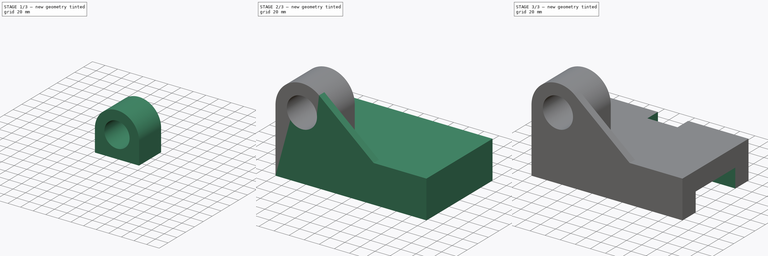
[diagram: build sequence overview — one tinted view per stage of 3, left to right]
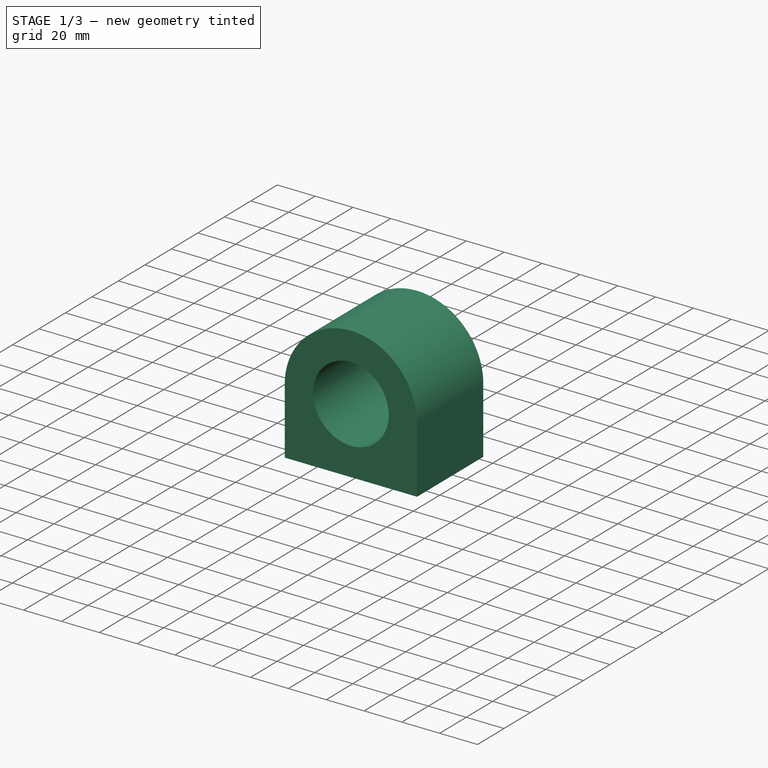
[diagram: stage 1 of 3 — iso view after this stage's code; geometry added in this stage tinted green]
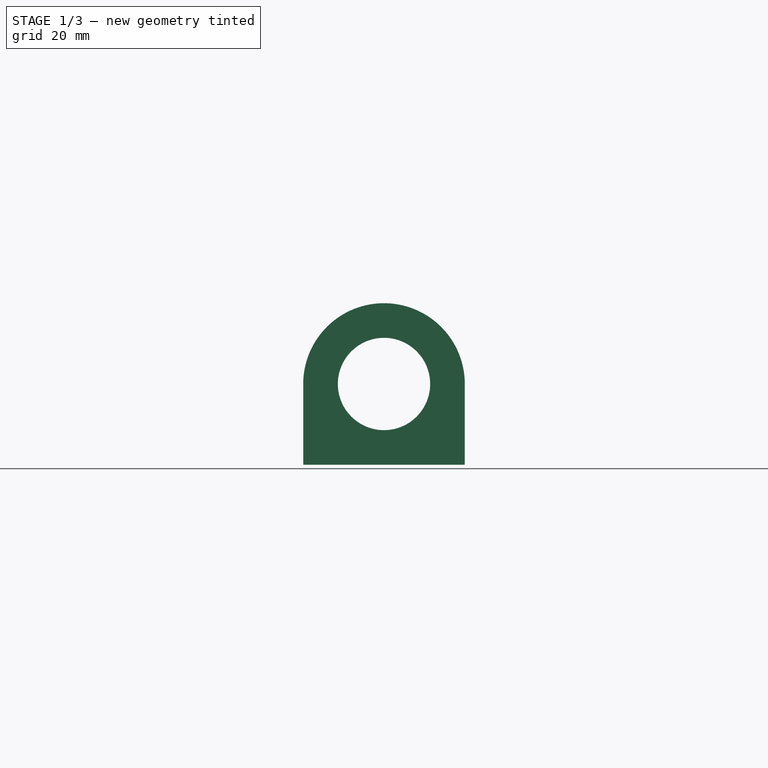
[diagram: stage 1 of 3 — front view after this stage's code; geometry added in this stage tinted green]
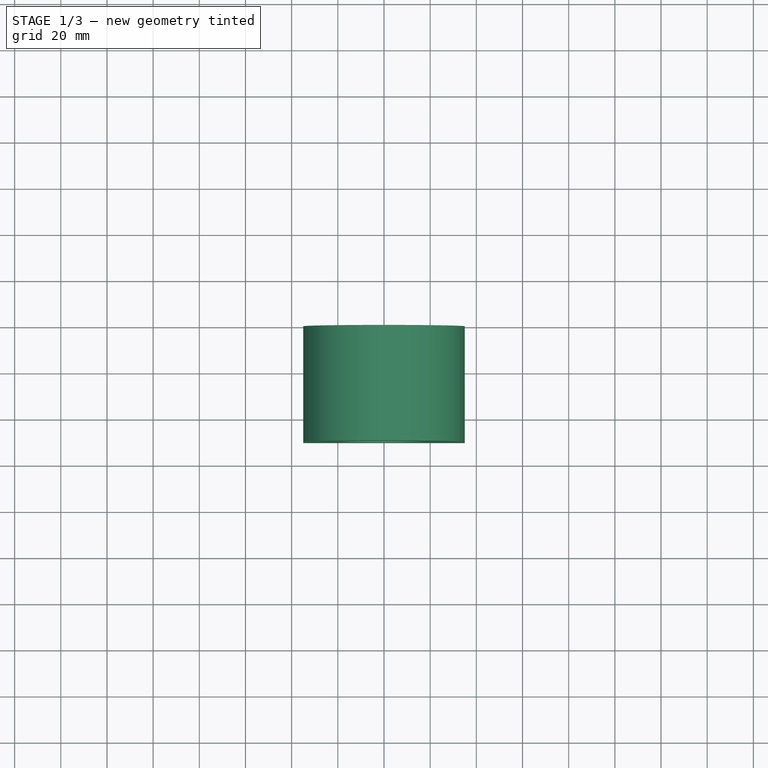
[diagram: stage 1 of 3 — top view after this stage's code; geometry added in this stage tinted green]
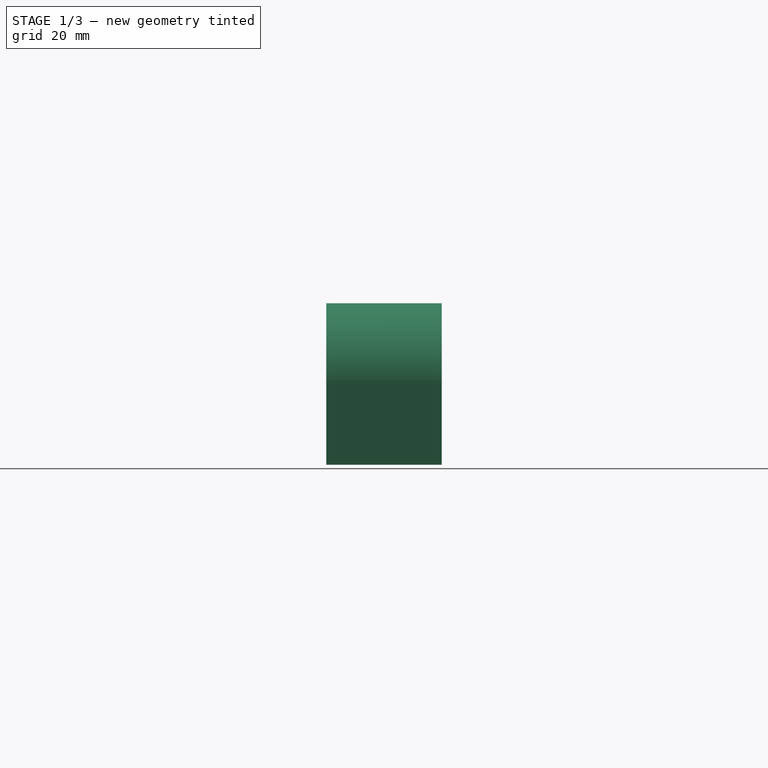
[diagram: stage 1 of 3 — right view after this stage's code; geometry added in this stage tinted green]
FCSTD DOCUMENT  (FreeCAD 0.19R24291 (Git))
Label: week4_model2
License: All rights reserved
LicenseURL: http://en.wikipedia.org/wiki/All_rights_reserved
objects: Sketcher::SketchObject×6, PartDesign::Pad×3, PartDesign::Pocket×3, PartDesign::Body×1
note: 19 computed .brp shape members not serialized (recipe doc carries the construction recipe); baked Part::Feature solids carry a one-line shape summary decoded from their .brp

FEATURE [Sketcher::SketchObject] Sketch
  FullyConstrained = true
  MapMode = 5
  Placement = pos=(0,0,0) rot=(1,0,0;1.5708rad)
  Support = -> [XZ_Plane]
  sketch-geometry (4):
    g0: LineSegment StartX=-35 StartY=-35 StartZ=0 EndX=35 EndY=-35 EndZ=0
    g1: LineSegment StartX=35 StartY=-35 StartZ=0 EndX=35 EndY=0 EndZ=0
    g2: ArcOfCircle CenterX=0 CenterY=0 CenterZ=0 NormalX=0 NormalY=0 NormalZ=1 AngleXU=0 Radius=35 StartAngle=0 EndAngle=3.14159
    g3: LineSegment StartX=-35 StartY=4.3e-15 StartZ=0 EndX=-35 EndY=-35 EndZ=0
  constraints (10):
    c: Horizontal(g0)
    c: Coincident(g0,g1)
    c: PointOnObject(g1,g-1)
    c: Tangent(g1,g2) = -1.5708
    c: PointOnObject(g2,g-1)
    c: Tangent(g2,g3) = -1.5708
    c: Coincident(g3,g0)
    c: Radius(g2) = 35
    c: Coincident(g2,g-1)
    c: DistanceY(g0,g2) = 35
FEATURE [PartDesign::Pad] Pad
  Direction = (1,1,1)
  Length = 50
  Length2 = 100
  Placement = pos=(0,0,0) rot=(1,0,0;1.5708rad)
  Profile = -> Sketch
  Refine = true
  Type = 0
FEATURE [Sketcher::SketchObject] Sketch001
  FullyConstrained = true
  MapMode = 5
  Placement = pos=(0,-50,3.33e-14) rot=(1,0,0;1.5708rad)
  Support = -> [Pad]
  sketch-geometry (1):
    g0: Circle CenterX=0 CenterY=0 CenterZ=0 NormalX=0 NormalY=0 NormalZ=1 AngleXU=0 Radius=20
  constraints (2):
    c: Coincident(g0,g-1)
    c: Radius(g0) = 20
FEATURE [PartDesign::Pocket] Pocket
  BaseFeature = -> Pad
  Length = 5
  Length2 = 100
  Midplane = true
  Placement = pos=(0,0,0) rot=(1,0,0;1.5708rad)
  Profile = -> Sketch001
  Refine = true
  Type = 1
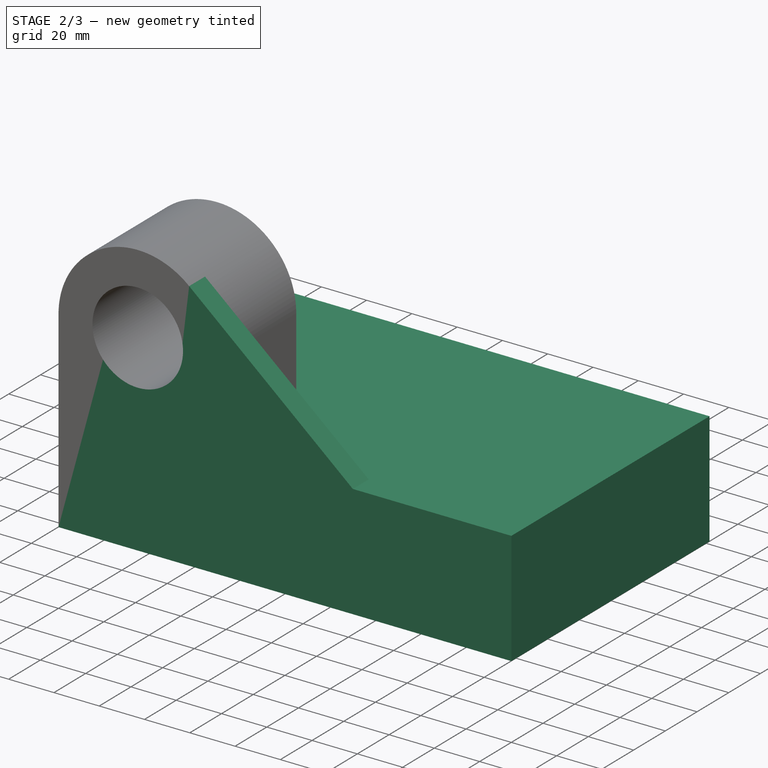
[diagram: stage 2 of 3 — iso view after this stage's code; geometry added in this stage tinted green]
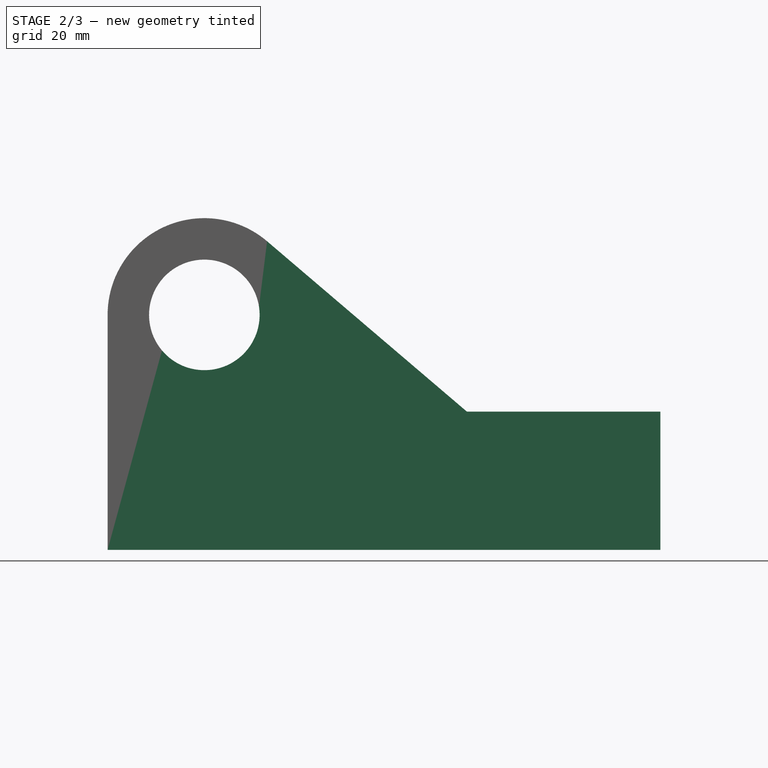
[diagram: stage 2 of 3 — front view after this stage's code; geometry added in this stage tinted green]
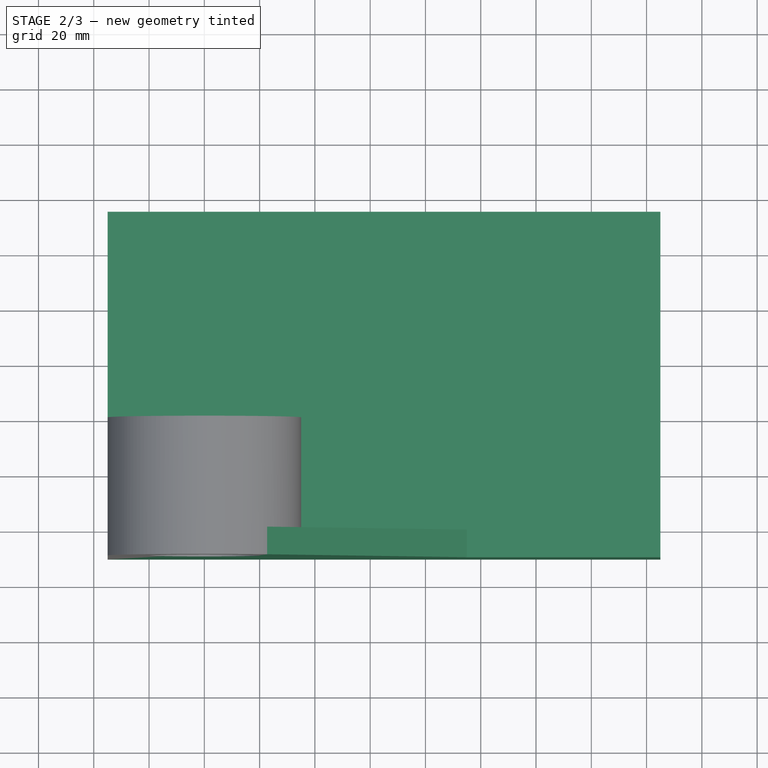
[diagram: stage 2 of 3 — top view after this stage's code; geometry added in this stage tinted green]
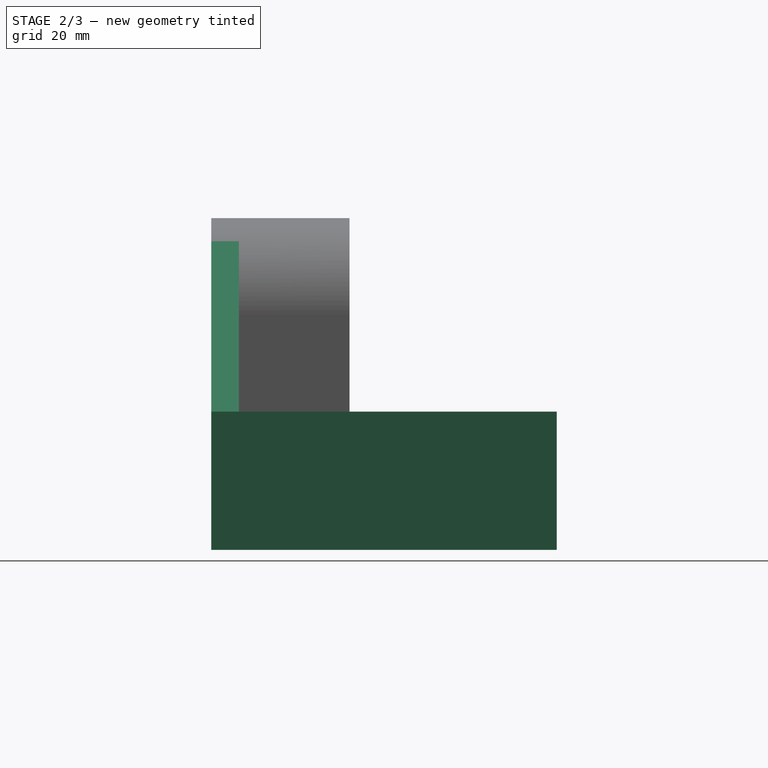
[diagram: stage 2 of 3 — right view after this stage's code; geometry added in this stage tinted green]
FEATURE [Sketcher::SketchObject] Sketch002
  ExternalGeometry = -> [Pocket]
  FullyConstrained = true
  MapMode = 5
  Placement = pos=(0,-50,5.55e-14) rot=(1,0,0;1.5708rad)
  Support = -> [Pocket]
  sketch-geometry (3):
    g0: LineSegment StartX=35 StartY=-35 StartZ=0 EndX=95 EndY=-35 EndZ=0
    g1: LineSegment StartX=95 StartY=-35 StartZ=0 EndX=22.7073 EndY=26.6342 EndZ=0
    g2: LineSegment StartX=22.7073 StartY=26.6342 StartZ=0 EndX=35 EndY=-35 EndZ=0
  constraints (8):
    c: Horizontal(g0)
    c: Coincident(g0,g1)
    c: Coincident(g1,g2)
    c: Coincident(g2,g0)
    c: Coincident(g0,g-3)
    c: Tangent(g-4,g1)
    c: PointOnObject(g1,g-4)
    c: DistanceX(g0,g0) = 60
FEATURE [PartDesign::Pad] Pad001
  BaseFeature = -> Pocket
  Direction = (1,1,1)
  Length = 10
  Length2 = 100
  Placement = pos=(0,0,0) rot=(1,0,0;1.5708rad)
  Profile = -> Sketch002
  Refine = true
  Reversed = true
  Type = 0
FEATURE [Sketcher::SketchObject] Sketch003
  ExternalGeometry = -> [Pad001]
  FullyConstrained = true
  MapMode = 5
  Placement = pos=(1.4e-15,-5.39e-14,-35) rot=(1,0,0;3.14159rad)
  Support = -> [Pad001]
  sketch-geometry (4):
    g0: LineSegment StartX=-35 StartY=50 StartZ=0 EndX=165 EndY=50 EndZ=0
    g1: LineSegment StartX=165 StartY=50 StartZ=0 EndX=165 EndY=-75 EndZ=0
    g2: LineSegment StartX=165 StartY=-75 StartZ=0 EndX=-35 EndY=-75 EndZ=0
    g3: LineSegment StartX=-35 StartY=-75 StartZ=0 EndX=-35 EndY=50 EndZ=0
  constraints (11):
    c: Coincident(g0,g1)
    c: Coincident(g1,g2)
    c: Coincident(g2,g3)
    c: Coincident(g3,g0)
    c: Horizontal(g0)
    c: Horizontal(g2)
    c: Vertical(g1)
    c: Vertical(g3)
    c: DistanceY(g1,g1) = 125
    c: DistanceX(g0,g0) = 200
    c: Coincident(g-3,g0)
FEATURE [PartDesign::Pad] Pad002
  BaseFeature = -> Pad001
  Direction = (1,1,1)
  Length = 50
  Length2 = 100
  Placement = pos=(0,0,0) rot=(1,0,0;1.5708rad)
  Profile = -> Sketch003
  Refine = true
  Type = 0
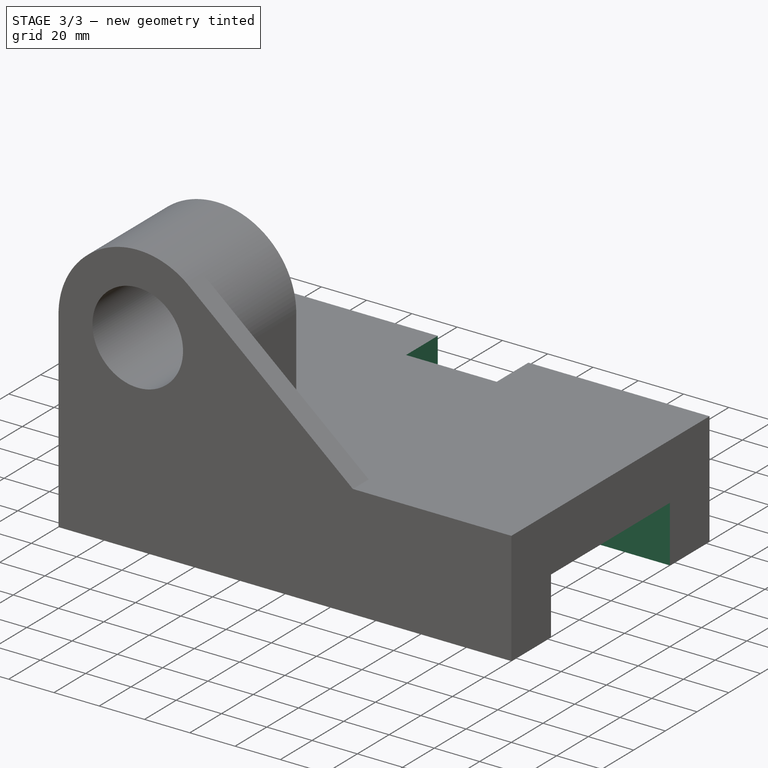
[diagram: stage 3 of 3 — iso view after this stage's code; geometry added in this stage tinted green]
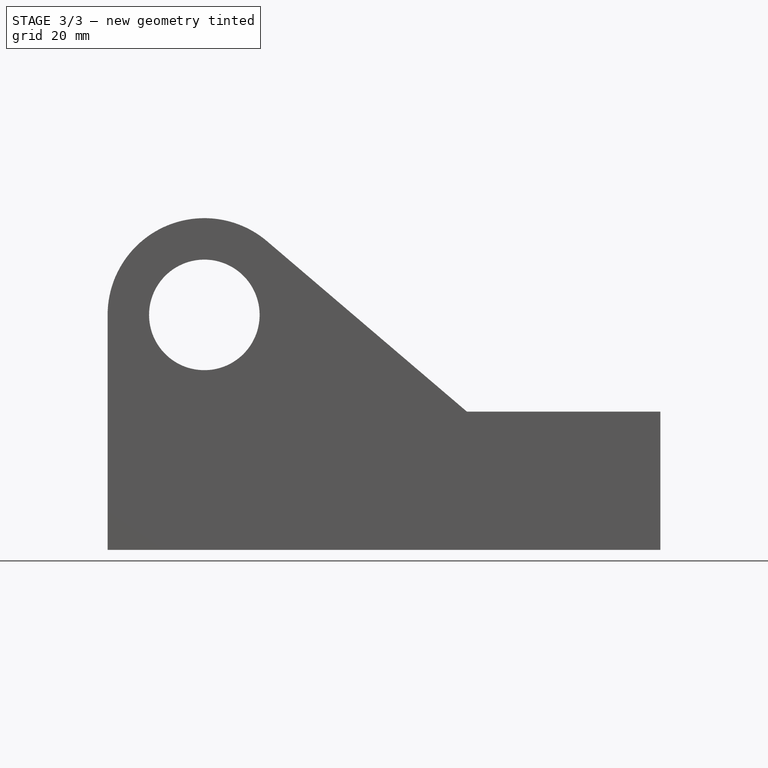
[diagram: stage 3 of 3 — front view after this stage's code; geometry added in this stage tinted green]
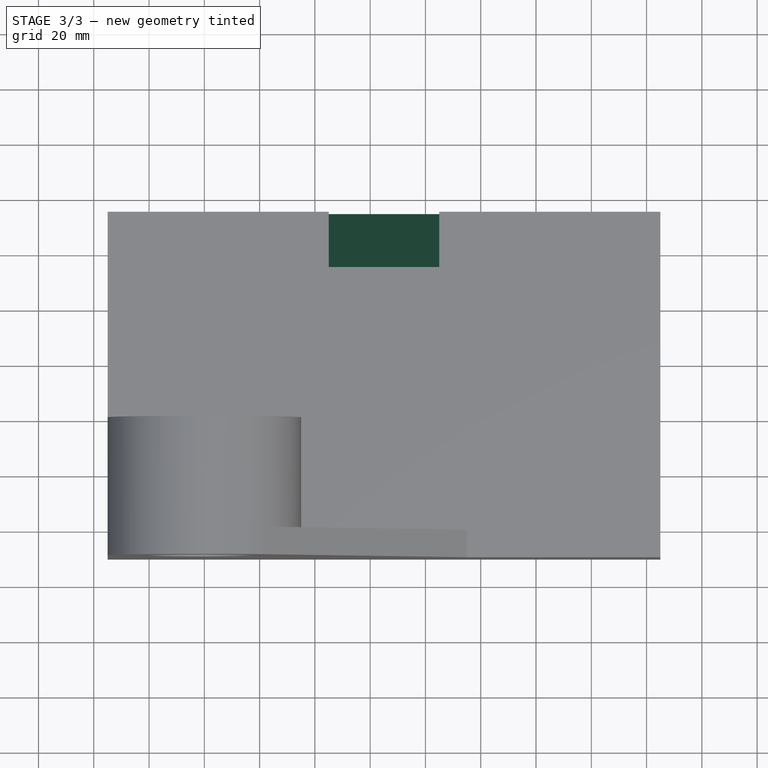
[diagram: stage 3 of 3 — top view after this stage's code; geometry added in this stage tinted green]
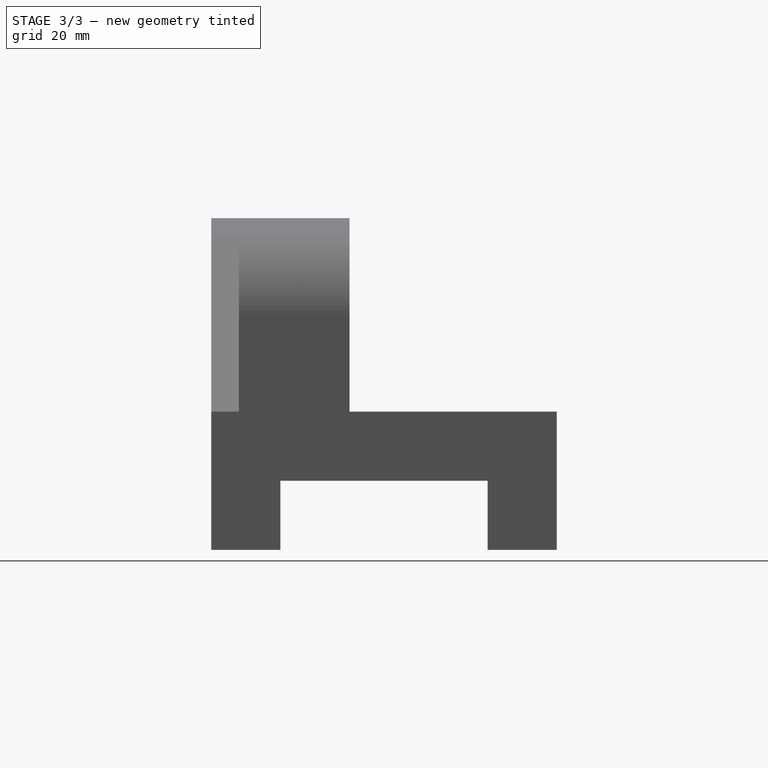
[diagram: stage 3 of 3 — right view after this stage's code; geometry added in this stage tinted green]
FEATURE [Sketcher::SketchObject] Sketch004
  ExternalGeometry = -> [Pad002]
  FullyConstrained = true
  MapMode = 5
  Placement = pos=(165,0,6.6e-15) rot=(0.707107,0,0.707107;3.14159rad)
  Support = -> [Pad002]
  sketch-geometry (4):
    g0: LineSegment StartX=-85 StartY=25 StartZ=0 EndX=-60 EndY=25 EndZ=0
    g1: LineSegment StartX=-60 StartY=25 StartZ=0 EndX=-60 EndY=-50 EndZ=0
    g2: LineSegment StartX=-60 StartY=-50 StartZ=0 EndX=-85 EndY=-50 EndZ=0
    g3: LineSegment StartX=-85 StartY=-50 StartZ=0 EndX=-85 EndY=25 EndZ=0
  constraints (12):
    c: Coincident(g0,g1)
    c: Coincident(g1,g2)
    c: Coincident(g2,g3)
    c: Coincident(g3,g0)
    c: Horizontal(g0)
    c: Horizontal(g2)
    c: Vertical(g1)
    c: Vertical(g3)
    c: DistanceX(g2,g2) = 25
    c: DistanceX(g1,g-3) = 25
    c: DistanceY(g1,g1) = 75
    c: DistanceY(g0,g-4) = 25
FEATURE [PartDesign::Pocket] Pocket001
  BaseFeature = -> Pad002
  Length = 5
  Length2 = 100
  Placement = pos=(0,0,0) rot=(1,0,0;1.5708rad)
  Profile = -> Sketch004
  Refine = true
  Type = 1
FEATURE [Sketcher::SketchObject] Sketch005
  AttachmentOffset = pos=(0,0,-80) rot=(0,0,1;0rad)
  ExternalGeometry = -> [Pocket001]
  FullyConstrained = true
  MapMode = 5
  Placement = pos=(85,0,-1.11e-14) rot=(0.707107,0,0.707107;3.14159rad)
  Support = -> [Pocket001]
  sketch-geometry (3):
    g0: LineSegment StartX=-35 StartY=-55 StartZ=0 EndX=-35 EndY=-75 EndZ=0
    g1: LineSegment StartX=-35 StartY=-75 StartZ=0 EndX=-85 EndY=-75 EndZ=0
    g2: LineSegment StartX=-85 StartY=-75 StartZ=0 EndX=-35 EndY=-55 EndZ=0
  constraints (8):
    c: Coincident(g0,g1)
    c: Horizontal(g1)
    c: Coincident(g1,g2)
    c: Coincident(g2,g0)
    c: DistanceX(g1,g1) = 50
    c: Vertical(g0,g0)
    c: DistanceY(g0,g0) = 20
    c: Coincident(g1,g-3)
FEATURE [PartDesign::Pocket] Pocket002
  BaseFeature = -> Pocket001
  Length = 40
  Length2 = 100
  Placement = pos=(0,0,0) rot=(1,0,0;1.5708rad)
  Profile = -> Sketch005
  Refine = true
  Type = 0
FEATURE [PartDesign::Body] Body
  Group = -> [Sketch,Pad,Sketch001,Pocket,Sketch002,Pad001,Sketch003,Pad002,Sketch004,Pocket001,Sketch005,Pocket002]
  Origin = -> Origin
  Tip = -> Pocket002
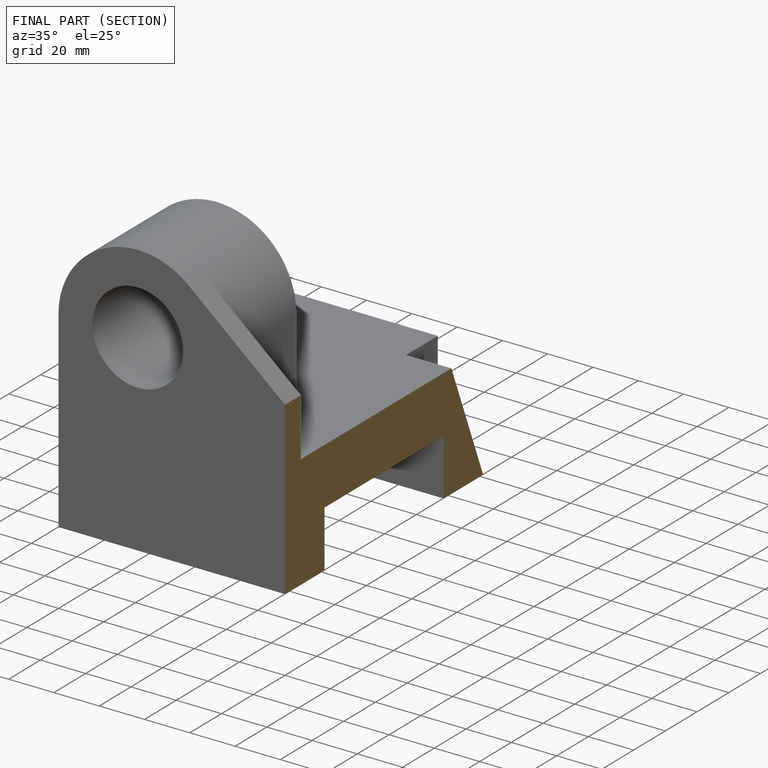
[diagram: finished part — half-section view (interior)]
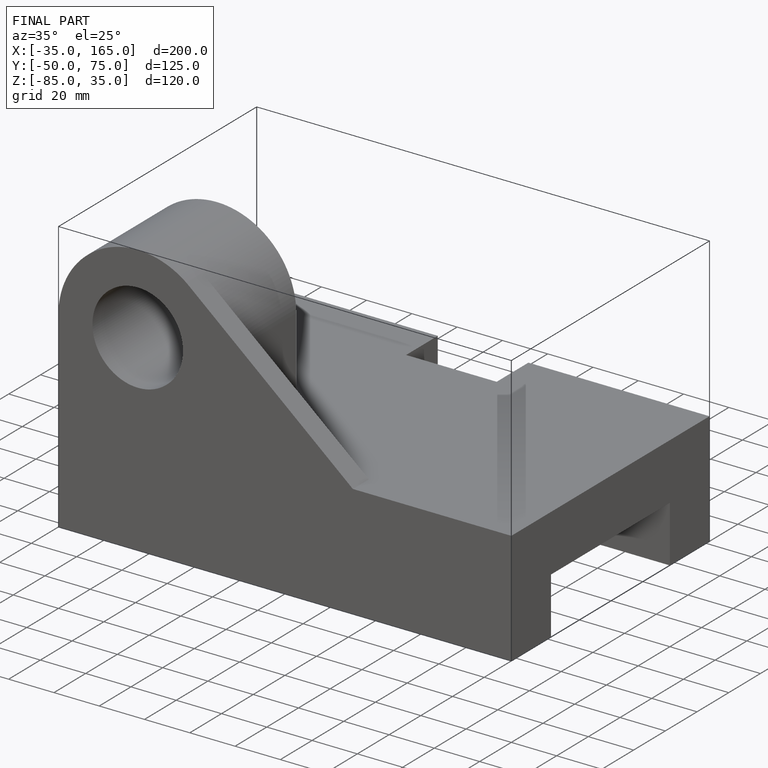
[diagram: finished part — iso view with bounding-box wireframe]
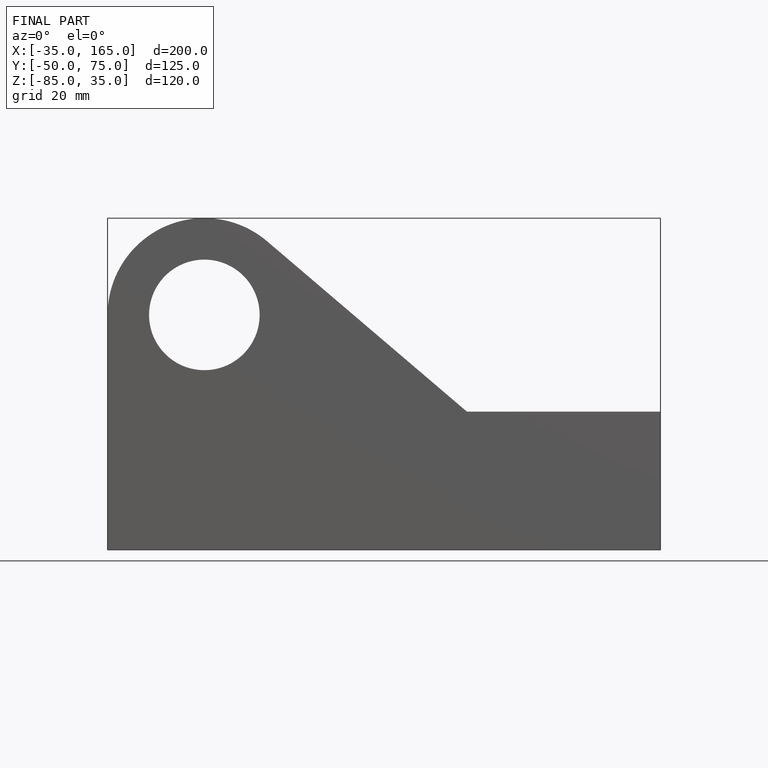
[diagram: finished part — front view with bounding-box wireframe]
